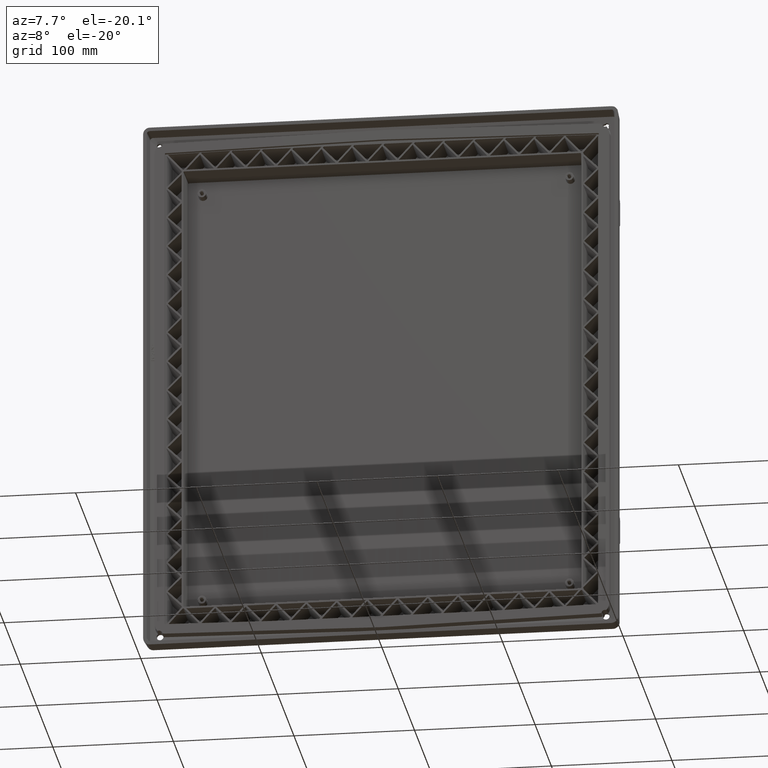
[diagram: clean part render]
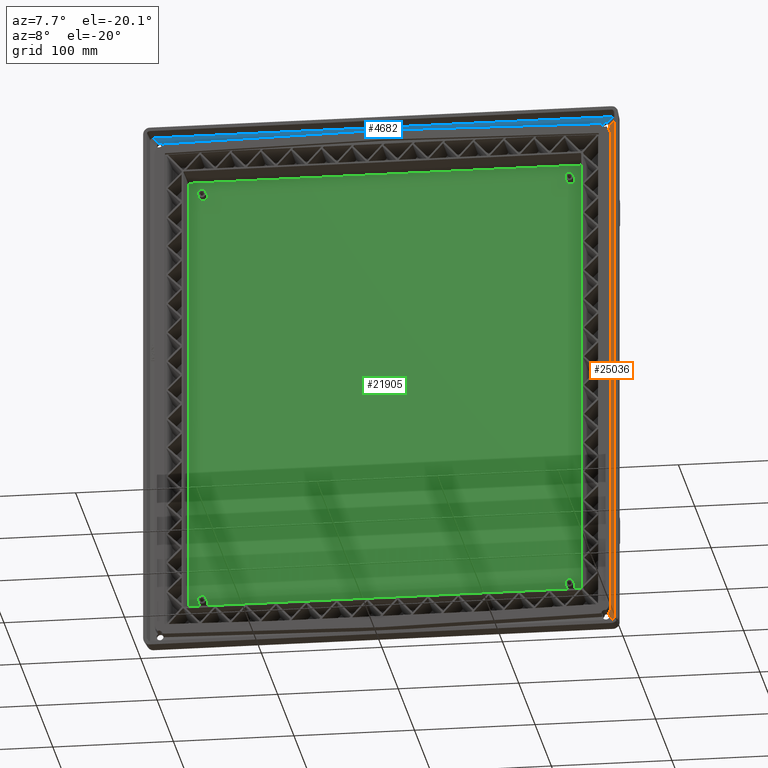
[diagram: same view with three faces highlighted in distinct colors, each labeled with its STEP entity id]
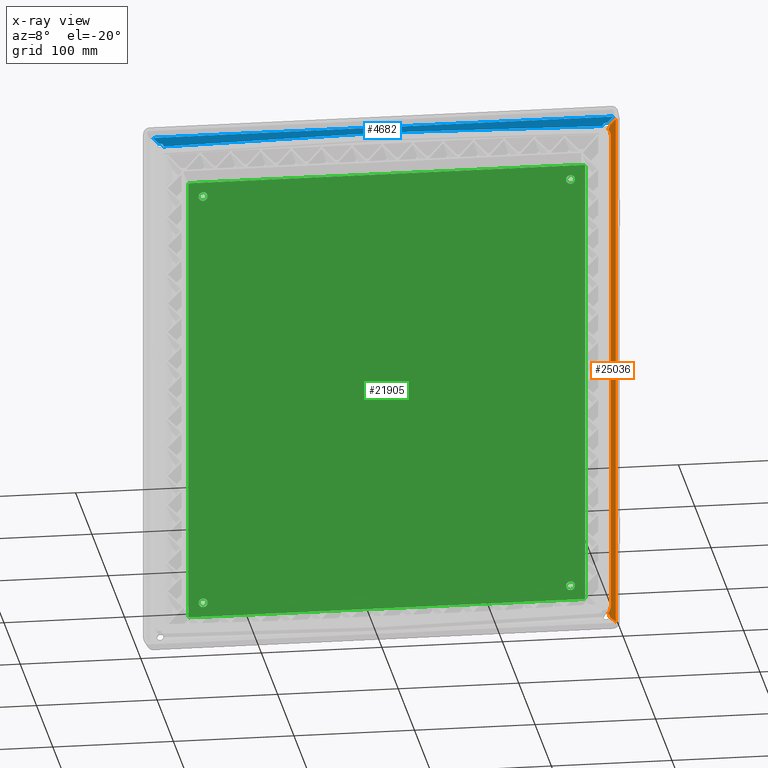
[diagram: x-ray of the same camera — body ghosted, the three highlighted faces saturated]
A machine part, auxiliary view with three faces highlighted in distinct colors.
The next image is the same camera in x-ray (body ghosted, the three faces saturated) — at least one of them is partly hidden behind the body in this view.
Their STEP definitions:

[orange] entity #25036 — the highlighted planar face has unit normal (0.0958, 0.9954, 0).
#612 = CARTESIAN_POINT ( 'NONE',  ( 188.1002924245300400, 7.242149064447600500, -210.3847569201163000 ) ) ;
#1227 = EDGE_CURVE ( 'NONE', #3740, #10674, #14809, .T. ) ;
#1235 = LINE ( 'NONE', #21724, #8979 ) ;
#2037 = EDGE_CURVE ( 'NONE', #10721, #3740, #12906, .T. ) ;
#2242 = CARTESIAN_POINT ( 'NONE',  ( 188.2436100927606900, 7.228349142583774700, 213.7811154145087200 ) ) ;
#2590 = CARTESIAN_POINT ( 'NONE',  ( 193.1263497831059500, 6.758194785204097800, 220.1718974751405800 ) ) ;
#2974 = VERTEX_POINT ( 'NONE', #3605 ) ;
#3605 = CARTESIAN_POINT ( 'NONE',  ( 186.6696170780997500, 7.379907431835039900, 211.8971849966436900 ) ) ;
#3740 = VERTEX_POINT ( 'NONE', #10793 ) ;
#4045 = ORIENTED_EDGE ( 'NONE', *, *, #9882, .F. ) ;
#4725 = LINE ( 'NONE', #14513, #26218 ) ;
#4777 = DIRECTION ( 'NONE',  ( -0.9953961983671790700, 0.09584575252022102500, 0.0000000000000000000 ) ) ;
#5030 = CARTESIAN_POINT ( 'NONE',  ( 188.1508553416446700, 7.237280409284530000, 210.2535449479692900 ) ) ;
#5122 = CARTESIAN_POINT ( 'NONE',  ( 188.9447656382476500, 7.160835542470406900, 208.1853516905118200 ) ) ;
#5394 = EDGE_CURVE ( 'NONE', #2974, #8751, #21432, .T. ) ;
#5851 = VECTOR ( 'NONE', #15574, 1000.000000000000100 ) ;
#6087 = CARTESIAN_POINT ( 'NONE',  ( 193.1417788409318600, 6.756709135911457900, -219.9877121914686600 ) ) ;
#6093 = ORIENTED_EDGE ( 'NONE', *, *, #17016, .F. ) ;
#6145 = CARTESIAN_POINT ( 'NONE',  ( 193.1417788409318600, 6.756709135911458800, -219.8952050040451500 ) ) ;
#6157 = VECTOR ( 'NONE', #11656, 1000.000000000000000 ) ;
#6197 = CARTESIAN_POINT ( 'NONE',  ( 193.1263497831059200, 6.758194785204099600, -220.1718974751406100 ) ) ;
#6452 = VERTEX_POINT ( 'NONE', #6145 ) ;
#6790 = CARTESIAN_POINT ( 'NONE',  ( 186.6696170780997500, 7.379907431835039900, 211.8971849966436900 ) ) ;
#7514 = VERTEX_POINT ( 'NONE', #15507 ) ;
#7552 = PLANE ( 'NONE',  #23409 ) ;
#8383 = ORIENTED_EDGE ( 'NONE', *, *, #8417, .T. ) ;
#8417 = EDGE_CURVE ( 'NONE', #11735, #11387, #13839, .T. ) ;
#8455 = CARTESIAN_POINT ( 'NONE',  ( 193.1417788409318600, 6.756709135911458800, -219.8952050040451500 ) ) ;
#8487 = CARTESIAN_POINT ( 'NONE',  ( 193.1263497831059200, 6.758194785204099600, -220.1718974751406100 ) ) ;
#8751 = VERTEX_POINT ( 'NONE', #29141 ) ;
#8979 = VECTOR ( 'NONE', #21420, 1000.000000000000100 ) ;
#9311 = CARTESIAN_POINT ( 'NONE',  ( 193.1417788409318600, 6.756709135911458800, 219.8952050040451500 ) ) ;
#9512 = CARTESIAN_POINT ( 'NONE',  ( 193.1366305560152100, 6.757204859365932800, 220.0800374449975700 ) ) ;
#9554 = CARTESIAN_POINT ( 'NONE',  ( 188.9447656382476500, 7.160835542470413100, -204.9999999999998600 ) ) ;
#9834 = CARTESIAN_POINT ( 'NONE',  ( 195.6404620733489700, 6.516113305714871900, 225.2259222071694800 ) ) ;
#9882 = EDGE_CURVE ( 'NONE', #6452, #16861, #29608, .T. ) ;
#9990 = CARTESIAN_POINT ( 'NONE',  ( 188.9447656382476500, 7.160835542470413100, 205.9702598365247200 ) ) ;
#10495 = EDGE_CURVE ( 'NONE', #11387, #7514, #30161, .T. ) ;
#10674 = VERTEX_POINT ( 'NONE', #19723 ) ;
#10721 = VERTEX_POINT ( 'NONE', #26662 ) ;
#10793 = CARTESIAN_POINT ( 'NONE',  ( 193.1263497831059500, 6.758194785204097800, 220.1718974751405800 ) ) ;
#11387 = VERTEX_POINT ( 'NONE', #23296 ) ;
#11656 = DIRECTION ( 'NONE',  ( 0.0000000000000000000, -0.0000000000000000000, -1.000000000000000000 ) ) ;
#11735 = VERTEX_POINT ( 'NONE', #27600 ) ;
#12906 = LINE ( 'NONE', #23034, #5851 ) ;
#13115 = ORIENTED_EDGE ( 'NONE', *, *, #19409, .T. ) ;
#13454 = CARTESIAN_POINT ( 'NONE',  ( 186.6696170780997500, 7.379907431835039900, 211.8971849966436900 ) ) ;
#13600 = ORIENTED_EDGE ( 'NONE', *, *, #2037, .F. ) ;
#13839 =( BOUNDED_CURVE ( )  B_SPLINE_CURVE ( 3, ( #16892, #14586, #612, #28961 ),
 .UNSPECIFIED., .F., .F. ) 
 B_SPLINE_CURVE_WITH_KNOTS ( ( 4, 4 ),
 ( 0.8662705728070698700, 1.626325110241901000 ),
 .UNSPECIFIED. ) 
 CURVE ( )  GEOMETRIC_REPRESENTATION_ITEM ( )  RATIONAL_B_SPLINE_CURVE ( ( 1.000000000000000000, 0.9524363471371852800, 0.9524363471371852800, 1.000000000000000000 ) ) 
 REPRESENTATION_ITEM ( '' )  );
#14416 = DIRECTION ( 'NONE',  ( 0.09584575252022102500, 0.9953961983671790700, 0.0000000000000000000 ) ) ;
#14446 = CARTESIAN_POINT ( 'NONE',  ( 187.8215934870834200, 7.268984719867989800, -214.8671411791181100 ) ) ;
#14513 = CARTESIAN_POINT ( 'NONE',  ( 193.1417788409318600, 6.756709135911459700, 225.2259222071694800 ) ) ;
#14586 = CARTESIAN_POINT ( 'NONE',  ( 188.9447656382476200, 7.160835542470414000, -208.2581728943349600 ) ) ;
#14642 = CARTESIAN_POINT ( 'NONE',  ( 187.5095725378649000, 7.299028920085938800, -212.6677806869886600 ) ) ;
#14809 =( BOUNDED_CURVE ( )  B_SPLINE_CURVE ( 3, ( #2590, #9512, #26025, #9311 ),
 .UNSPECIFIED., .F., .F. ) 
 B_SPLINE_CURVE_WITH_KNOTS ( ( 4, 4 ),
 ( 0.2256157631637721900, 0.3364159552918568600 ),
 .UNSPECIFIED. ) 
 CURVE ( )  GEOMETRIC_REPRESENTATION_ITEM ( )  RATIONAL_B_SPLINE_CURVE ( ( 1.000000000000000000, 0.9989772047532758900, 0.9989772047532758900, 1.000000000000000000 ) ) 
 REPRESENTATION_ITEM ( '' )  );
#15507 = CARTESIAN_POINT ( 'NONE',  ( 187.8215934870834200, 7.268984719867989800, -214.8671411791181100 ) ) ;
#15574 = DIRECTION ( 'NONE',  ( 0.7054734583899195900, -0.06792936783698909400, 0.7054734583899194800 ) ) ;
#15829 =( BOUNDED_CURVE ( )  B_SPLINE_CURVE ( 3, ( #6790, #30388, #2242, #16455 ),
 .UNSPECIFIED., .F., .F. ) 
 B_SPLINE_CURVE_WITH_KNOTS ( ( 4, 4 ),
 ( 5.290184633191658200, 6.478166271085797200 ),
 .UNSPECIFIED. ) 
 CURVE ( )  GEOMETRIC_REPRESENTATION_ITEM ( )  RATIONAL_B_SPLINE_CURVE ( ( 1.000000000000000000, 0.8858091545641499900, 0.8858091545641499900, 1.000000000000000000 ) ) 
 REPRESENTATION_ITEM ( '' )  );
#16001 = EDGE_LOOP ( 'NONE', ( #19807, #6093, #4045, #13115, #28001, #13600, #23246, #22704, #24408, #8383 ) ) ;
#16455 = CARTESIAN_POINT ( 'NONE',  ( 187.9949034868072900, 7.252296864951462800, 215.0404511788419200 ) ) ;
#16718 = FACE_OUTER_BOUND ( 'NONE', #16001, .T. ) ;
#16861 = VERTEX_POINT ( 'NONE', #8487 ) ;
#16892 = CARTESIAN_POINT ( 'NONE',  ( 188.9447656382476500, 7.160835542470413100, -205.9702598365247800 ) ) ;
#17016 = EDGE_CURVE ( 'NONE', #16861, #7514, #1235, .T. ) ;
#18968 = DIRECTION ( 'NONE',  ( 0.0000000000000000000, -0.0000000000000000000, 1.000000000000000000 ) ) ;
#19409 = EDGE_CURVE ( 'NONE', #6452, #10674, #4725, .T. ) ;
#19723 = CARTESIAN_POINT ( 'NONE',  ( 193.1417788409318600, 6.756709135911458800, 219.8952050040451500 ) ) ;
#19807 = ORIENTED_EDGE ( 'NONE', *, *, #10495, .T. ) ;
#20354 = EDGE_CURVE ( 'NONE', #2974, #10721, #15829, .T. ) ;
#21392 = EDGE_CURVE ( 'NONE', #8751, #11735, #28378, .T. ) ;
#21420 = DIRECTION ( 'NONE',  ( -0.7054734583899195900, 0.06792936783698909400, 0.7054734583899194800 ) ) ;
#21432 =( BOUNDED_CURVE ( )  B_SPLINE_CURVE ( 3, ( #13454, #5030, #5122, #9990 ),
 .UNSPECIFIED., .F., .F. ) 
 B_SPLINE_CURVE_WITH_KNOTS ( ( 4, 4 ),
 ( 4.679950051249669200, 5.416914734372513300 ),
 .UNSPECIFIED. ) 
 CURVE ( )  GEOMETRIC_REPRESENTATION_ITEM ( )  RATIONAL_B_SPLINE_CURVE ( ( 1.000000000000000000, 0.9552500535990758900, 0.9552500535990758900, 1.000000000000000000 ) ) 
 REPRESENTATION_ITEM ( '' )  );
#21724 = CARTESIAN_POINT ( 'NONE',  ( 196.9045582095074600, 6.394394691933986700, -223.9501059015421200 ) ) ;
#22704 = ORIENTED_EDGE ( 'NONE', *, *, #5394, .T. ) ;
#23034 = CARTESIAN_POINT ( 'NONE',  ( 196.9045582095074800, 6.394394691933983100, 223.9501059015420900 ) ) ;
#23246 = ORIENTED_EDGE ( 'NONE', *, *, #20354, .F. ) ;
#23296 = CARTESIAN_POINT ( 'NONE',  ( 186.5318446894623000, 7.393173404004844700, -212.0465676007110900 ) ) ;
#23409 = AXIS2_PLACEMENT_3D ( 'NONE', #9834, #14416, #4777 ) ;
#23797 = CARTESIAN_POINT ( 'NONE',  ( 186.5318446894623000, 7.393173404004844700, -212.0465676007110900 ) ) ;
#24408 = ORIENTED_EDGE ( 'NONE', *, *, #21392, .T. ) ;
#25036 = ADVANCED_FACE ( 'NONE', ( #16718 ), #7552, .F. ) ;
#26025 = CARTESIAN_POINT ( 'NONE',  ( 193.1417788409318900, 6.756709135911458800, 219.9877121914686900 ) ) ;
#26218 = VECTOR ( 'NONE', #18968, 1000.000000000000000 ) ;
#26662 = CARTESIAN_POINT ( 'NONE',  ( 187.9949034868072900, 7.252296864951462800, 215.0404511788419200 ) ) ;
#27235 = CARTESIAN_POINT ( 'NONE',  ( 193.1366305560152100, 6.757204859365932000, -220.0800374449976300 ) ) ;
#27600 = CARTESIAN_POINT ( 'NONE',  ( 188.9447656382476500, 7.160835542470413100, -205.9702598365247800 ) ) ;
#28001 = ORIENTED_EDGE ( 'NONE', *, *, #1227, .F. ) ;
#28378 = LINE ( 'NONE', #9554, #6157 ) ;
#28918 = CARTESIAN_POINT ( 'NONE',  ( 187.9912885230910400, 7.252644946366972400, -213.7212535669256700 ) ) ;
#28961 = CARTESIAN_POINT ( 'NONE',  ( 186.5318446894623000, 7.393173404004844700, -212.0465676007110900 ) ) ;
#29141 = CARTESIAN_POINT ( 'NONE',  ( 188.9447656382476500, 7.160835542470413100, 205.9702598365247200 ) ) ;
#29608 =( BOUNDED_CURVE ( )  B_SPLINE_CURVE ( 3, ( #8455, #6087, #27235, #6197 ),
 .UNSPECIFIED., .F., .F. ) 
 B_SPLINE_CURVE_WITH_KNOTS ( ( 4, 4 ),
 ( 5.946769351887729400, 6.057569544015826100 ),
 .UNSPECIFIED. ) 
 CURVE ( )  GEOMETRIC_REPRESENTATION_ITEM ( )  RATIONAL_B_SPLINE_CURVE ( ( 1.000000000000000000, 0.9989772047532756700, 0.9989772047532756700, 1.000000000000000000 ) ) 
 REPRESENTATION_ITEM ( '' )  );
#30161 =( BOUNDED_CURVE ( )  B_SPLINE_CURVE ( 3, ( #23797, #14642, #28918, #14446 ),
 .UNSPECIFIED., .F., .F. ) 
 B_SPLINE_CURVE_WITH_KNOTS ( ( 4, 4 ),
 ( 5.278407016167697900, 6.430207018806625800 ),
 .UNSPECIFIED. ) 
 CURVE ( )  GEOMETRIC_REPRESENTATION_ITEM ( )  RATIONAL_B_SPLINE_CURVE ( ( 1.000000000000000000, 0.8924683403891258100, 0.8924683403891258100, 1.000000000000000000 ) ) 
 REPRESENTATION_ITEM ( '' )  );
#30388 = CARTESIAN_POINT ( 'NONE',  ( 187.7448998074135300, 7.276369481286177900, 212.5982924682030600 ) ) ;

[blue] entity #4682 — the highlighted planar face has unit normal (0, 0.9954, 0.0958).
#202 = ORIENTED_EDGE ( 'NONE', *, *, #7897, .F. ) ;
#443 = EDGE_CURVE ( 'NONE', #27536, #16253, #25247, .T. ) ;
#486 = CARTESIAN_POINT ( 'NONE',  ( 0.1585765575110430200, 7.188939717578445100, 217.9028926201407000 ) ) ;
#609 = CARTESIAN_POINT ( 'NONE',  ( -180.3274595042763100, 7.490234595854691900, 214.7738256710299000 ) ) ;
#675 = CARTESIAN_POINT ( 'NONE',  ( -185.6146302994538600, 7.231938922510346800, 217.4563288027926800 ) ) ;
#937 =( BOUNDED_CURVE ( )  B_SPLINE_CURVE ( 3, ( #990, #12471, #675, #24417 ),
 .UNSPECIFIED., .F., .F. ) 
 B_SPLINE_CURVE_WITH_KNOTS ( ( 4, 4 ),
 ( 0.0000000000000000000, 0.3030669380768593600 ),
 .UNSPECIFIED. ) 
 CURVE ( )  GEOMETRIC_REPRESENTATION_ITEM ( )  RATIONAL_B_SPLINE_CURVE ( ( 1.000000000000000000, 0.9923605044771237600, 0.9923605044771237600, 1.000000000000000000 ) ) 
 REPRESENTATION_ITEM ( '' )  );
#990 = CARTESIAN_POINT ( 'NONE',  ( -185.0000000000000000, 7.227446276560629100, 217.5029867149209500 ) ) ;
#1059 = LINE ( 'NONE', #486, #11422 ) ;
#1569 = CARTESIAN_POINT ( 'NONE',  ( 180.3274595042763100, 7.490234595854692800, 214.7738256710298700 ) ) ;
#1744 = VERTEX_POINT ( 'NONE', #12052 ) ;
#2367 = CARTESIAN_POINT ( 'NONE',  ( 185.0000000000000000, 7.227446276560629100, 217.5029867149209500 ) ) ;
#2644 = CARTESIAN_POINT ( 'NONE',  ( 185.9096299993036000, 7.240821249763921100, 217.3640823072684600 ) ) ;
#2665 = CARTESIAN_POINT ( 'NONE',  ( 190.7377121914688600, 6.756709135911457100, 222.3917788409315500 ) ) ;
#2983 = CARTESIAN_POINT ( 'NONE',  ( 185.3090860961124800, 7.227446276560629100, 217.5029867149210100 ) ) ;
#3119 =( BOUNDED_CURVE ( )  B_SPLINE_CURVE ( 3, ( #2367, #26095, #21307, #19036 ),
 .UNSPECIFIED., .F., .F. ) 
 B_SPLINE_CURVE_WITH_KNOTS ( ( 4, 4 ),
 ( 0.0000000000000000000, 1.525160855539051700 ),
 .UNSPECIFIED. ) 
 CURVE ( )  GEOMETRIC_REPRESENTATION_ITEM ( )  RATIONAL_B_SPLINE_CURVE ( ( 1.000000000000000000, 0.8153705916585779500, 0.8153705916585779500, 1.000000000000000000 ) ) 
 REPRESENTATION_ITEM ( '' )  );
#3303 = ORIENTED_EDGE ( 'NONE', *, *, #17120, .T. ) ;
#4058 = DIRECTION ( 'NONE',  ( -0.7054734583899195900, 0.06792936783698909400, -0.7054734583899194800 ) ) ;
#4682 = ADVANCED_FACE ( 'NONE', ( #9653 ), #10253, .F. ) ;
#5501 = EDGE_CURVE ( 'NONE', #23325, #21764, #29206, .T. ) ;
#5688 =( BOUNDED_CURVE ( )  B_SPLINE_CURVE ( 3, ( #30027, #25806, #9395, #21222 ),
 .UNSPECIFIED., .F., .F. ) 
 B_SPLINE_CURVE_WITH_KNOTS ( ( 4, 4 ),
 ( 0.2256157631637929200, 0.3364159552918676900 ),
 .UNSPECIFIED. ) 
 CURVE ( )  GEOMETRIC_REPRESENTATION_ITEM ( )  RATIONAL_B_SPLINE_CURVE ( ( 1.000000000000000000, 0.9989772047532761200, 0.9989772047532761200, 1.000000000000000000 ) ) 
 REPRESENTATION_ITEM ( '' )  );
#5798 = DIRECTION ( 'NONE',  ( 0.0000000000000000000, -0.09584575252022103900, 0.9953961983671790700 ) ) ;
#6423 = LINE ( 'NONE', #27586, #24253 ) ;
#6434 = VERTEX_POINT ( 'NONE', #25129 ) ;
#7120 = AXIS2_PLACEMENT_3D ( 'NONE', #12853, #19992, #5798 ) ;
#7269 = CARTESIAN_POINT ( 'NONE',  ( -182.0338453312157000, 7.341949493186590700, 216.3138253433072000 ) ) ;
#7635 = CARTESIAN_POINT ( 'NONE',  ( -190.9218974751408100, 6.758194785204097800, 222.3763497831056400 ) ) ;
#7897 = EDGE_CURVE ( 'NONE', #10551, #6434, #937, .T. ) ;
#8416 = ORIENTED_EDGE ( 'NONE', *, *, #26173, .T. ) ;
#9395 = CARTESIAN_POINT ( 'NONE',  ( -190.7377121914689400, 6.756709135911462400, 222.3917788409315800 ) ) ;
#9653 = FACE_OUTER_BOUND ( 'NONE', #29477, .T. ) ;
#10253 = PLANE ( 'NONE',  #7120 ) ;
#10551 = VERTEX_POINT ( 'NONE', #26453 ) ;
#10581 = ORIENTED_EDGE ( 'NONE', *, *, #30450, .T. ) ;
#10782 = DIRECTION ( 'NONE',  ( -1.000000000000000000, -0.0000000000000000000, -0.0000000000000000000 ) ) ;
#11040 =( BOUNDED_CURVE ( )  B_SPLINE_CURVE ( 3, ( #1569, #15543, #25091, #15859 ),
 .UNSPECIFIED., .F., .F. ) 
 B_SPLINE_CURVE_WITH_KNOTS ( ( 4, 4 ),
 ( 0.8822001264295934500, 1.068284501790514900 ),
 .UNSPECIFIED. ) 
 CURVE ( )  GEOMETRIC_REPRESENTATION_ITEM ( )  RATIONAL_B_SPLINE_CURVE ( ( 1.000000000000000000, 0.9971164648651960100, 0.9971164648651960100, 1.000000000000000000 ) ) 
 REPRESENTATION_ITEM ( '' )  );
#11060 = ORIENTED_EDGE ( 'NONE', *, *, #12010, .T. ) ;
#11246 = ORIENTED_EDGE ( 'NONE', *, *, #443, .T. ) ;
#11422 = VECTOR ( 'NONE', #21502, 999.9999999999998900 ) ;
#12010 = EDGE_CURVE ( 'NONE', #16294, #16855, #29273, .T. ) ;
#12052 = CARTESIAN_POINT ( 'NONE',  ( 190.9218974751407800, 6.758194785204096900, 222.3763497831056700 ) ) ;
#12227 = CARTESIAN_POINT ( 'NONE',  ( -185.0000000000000000, 7.227446276560629100, 217.5029867149209500 ) ) ;
#12428 = CARTESIAN_POINT ( 'NONE',  ( -183.2785499354238300, 7.227446276560628200, 217.5029867149209800 ) ) ;
#12471 = CARTESIAN_POINT ( 'NONE',  ( -185.3090860961125100, 7.227446276560628200, 217.5029867149209800 ) ) ;
#12474 = CARTESIAN_POINT ( 'NONE',  ( -179.3278304738495600, 7.488562924797416400, 214.7911866387470900 ) ) ;
#12626 = CARTESIAN_POINT ( 'NONE',  ( -181.9553134112798000, 7.507533943021996900, 214.5941650814702700 ) ) ;
#12853 = CARTESIAN_POINT ( 'NONE',  ( -195.9759222071697600, 6.516113305714871900, 224.8904620733487100 ) ) ;
#12960 =( BOUNDED_CURVE ( )  B_SPLINE_CURVE ( 3, ( #12626, #22143, #24359, #609 ),
 .UNSPECIFIED., .F., .T. ) 
 B_SPLINE_CURVE_WITH_KNOTS ( ( 4, 4 ),
 ( 5.214900805389076400, 5.400985180749993100 ),
 .UNSPECIFIED. ) 
 CURVE ( )  GEOMETRIC_REPRESENTATION_ITEM ( )  RATIONAL_B_SPLINE_CURVE ( ( 1.000000000000000000, 0.9971164648651962300, 0.9971164648651962300, 1.000000000000000000 ) ) 
 REPRESENTATION_ITEM ( '' )  );
#13500 = ORIENTED_EDGE ( 'NONE', *, *, #5501, .F. ) ;
#14014 = ORIENTED_EDGE ( 'NONE', *, *, #14641, .F. ) ;
#14478 = CARTESIAN_POINT ( 'NONE',  ( 190.6452050040454400, 6.756709135911458800, 222.3917788409315800 ) ) ;
#14518 = CARTESIAN_POINT ( 'NONE',  ( 181.9553134112798300, 7.507533943022004100, 214.5941650814701200 ) ) ;
#14641 = EDGE_CURVE ( 'NONE', #21764, #29122, #3119, .T. ) ;
#14690 = CARTESIAN_POINT ( 'NONE',  ( 185.0000000000000000, 7.227446276560629100, 217.5029867149209500 ) ) ;
#15543 = CARTESIAN_POINT ( 'NONE',  ( 180.8747831141301400, 7.491149880434978300, 214.7643200772222400 ) ) ;
#15723 = CARTESIAN_POINT ( 'NONE',  ( -5.502326025363935000E-015, 7.188674531360872400, 217.9056466843103700 ) ) ;
#15859 = CARTESIAN_POINT ( 'NONE',  ( 181.9553134112798300, 7.507533943022004100, 214.5941650814701200 ) ) ;
#16253 = VERTEX_POINT ( 'NONE', #15723 ) ;
#16294 = VERTEX_POINT ( 'NONE', #18111 ) ;
#16836 = EDGE_CURVE ( 'NONE', #1744, #23325, #6423, .T. ) ;
#16855 = VERTEX_POINT ( 'NONE', #29931 ) ;
#17088 = CARTESIAN_POINT ( 'NONE',  ( -180.3274595042763100, 7.490234595854691900, 214.7738256710299000 ) ) ;
#17120 = EDGE_CURVE ( 'NONE', #21664, #27536, #12960, .T. ) ;
#17201 = VERTEX_POINT ( 'NONE', #7635 ) ;
#18111 = CARTESIAN_POINT ( 'NONE',  ( 190.6452050040454400, 6.756709135911458800, 222.3917788409315800 ) ) ;
#18905 = VECTOR ( 'NONE', #21891, 999.9999999999998900 ) ;
#19036 = CARTESIAN_POINT ( 'NONE',  ( 181.9553134112798300, 7.507533943022004100, 214.5941650814701200 ) ) ;
#19069 = CARTESIAN_POINT ( 'NONE',  ( -181.9553134112798000, 7.507533943021996900, 214.5941650814702700 ) ) ;
#19244 = CARTESIAN_POINT ( 'NONE',  ( 190.8300374449978000, 6.757204859365931100, 222.3866305560149200 ) ) ;
#19375 = CARTESIAN_POINT ( 'NONE',  ( 185.9096299993036000, 7.240821249763921100, 217.3640823072684600 ) ) ;
#19643 = CARTESIAN_POINT ( 'NONE',  ( 185.6146302994538600, 7.231938922510347600, 217.4563288027926800 ) ) ;
#19992 = DIRECTION ( 'NONE',  ( 0.0000000000000000000, 0.9953961983671790700, 0.09584575252022103900 ) ) ;
#20374 = ORIENTED_EDGE ( 'NONE', *, *, #27497, .F. ) ;
#20519 = ORIENTED_EDGE ( 'NONE', *, *, #29787, .F. ) ;
#20767 = VECTOR ( 'NONE', #10782, 1000.000000000000000 ) ;
#21039 = DIRECTION ( 'NONE',  ( -0.7054734583899195900, -0.06792936783698909400, 0.7054734583899194800 ) ) ;
#21088 = VECTOR ( 'NONE', #21039, 1000.000000000000100 ) ;
#21222 = CARTESIAN_POINT ( 'NONE',  ( -190.6452050040454400, 6.756709135911460600, 222.3917788409315500 ) ) ;
#21307 = CARTESIAN_POINT ( 'NONE',  ( 182.0338453312156200, 7.341949493186599600, 216.3138253433071700 ) ) ;
#21502 = DIRECTION ( 'NONE',  ( 0.9998478229908014400, 0.001672036942204917000, -0.01736476757745861500 ) ) ;
#21664 = VERTEX_POINT ( 'NONE', #26015 ) ;
#21764 = VERTEX_POINT ( 'NONE', #14690 ) ;
#21891 = DIRECTION ( 'NONE',  ( 0.9998478229908014400, -0.001672036942204917000, 0.01736476757745861500 ) ) ;
#22143 = CARTESIAN_POINT ( 'NONE',  ( -181.4189702659032800, 7.496933005334586400, 214.7042600287758500 ) ) ;
#23117 = CARTESIAN_POINT ( 'NONE',  ( 180.3274595042763100, 7.490234595854692800, 214.7738256710298700 ) ) ;
#23325 = VERTEX_POINT ( 'NONE', #2644 ) ;
#23343 = LINE ( 'NONE', #25133, #21088 ) ;
#24129 = CARTESIAN_POINT ( 'NONE',  ( 190.9218974751407800, 6.758194785204096900, 222.3763497831056700 ) ) ;
#24253 = VECTOR ( 'NONE', #4058, 1000.000000000000100 ) ;
#24359 = CARTESIAN_POINT ( 'NONE',  ( -180.8747831141300800, 7.491149880434978300, 214.7643200772222900 ) ) ;
#24417 = CARTESIAN_POINT ( 'NONE',  ( -185.9096299993036600, 7.240821249763925500, 217.3640823072684600 ) ) ;
#25091 = CARTESIAN_POINT ( 'NONE',  ( 181.4189702659033400, 7.496933005334586400, 214.7042600287757600 ) ) ;
#25129 = CARTESIAN_POINT ( 'NONE',  ( -185.9096299993036600, 7.240821249763925500, 217.3640823072684600 ) ) ;
#25133 = CARTESIAN_POINT ( 'NONE',  ( -194.7001059015423700, 6.394394691933983100, 226.1545582095072000 ) ) ;
#25247 = LINE ( 'NONE', #12474, #18905 ) ;
#25806 = CARTESIAN_POINT ( 'NONE',  ( -190.8300374449978300, 6.757204859365937300, 222.3866305560149500 ) ) ;
#26015 = CARTESIAN_POINT ( 'NONE',  ( -181.9553134112798000, 7.507533943021996900, 214.5941650814702700 ) ) ;
#26057 = EDGE_CURVE ( 'NONE', #21664, #10551, #26231, .T. ) ;
#26095 = CARTESIAN_POINT ( 'NONE',  ( 183.2785499354237700, 7.227446276560627300, 217.5029867149209800 ) ) ;
#26173 = EDGE_CURVE ( 'NONE', #27373, #29122, #11040, .T. ) ;
#26231 =( BOUNDED_CURVE ( )  B_SPLINE_CURVE ( 3, ( #19069, #7269, #12428, #12227 ),
 .UNSPECIFIED., .F., .F. ) 
 B_SPLINE_CURVE_WITH_KNOTS ( ( 4, 4 ),
 ( 4.758024451640588700, 6.283185307179586200 ),
 .UNSPECIFIED. ) 
 CURVE ( )  GEOMETRIC_REPRESENTATION_ITEM ( )  RATIONAL_B_SPLINE_CURVE ( ( 1.000000000000000000, 0.8153705916585904900, 0.8153705916585904900, 1.000000000000000000 ) ) 
 REPRESENTATION_ITEM ( '' )  );
#26423 = ORIENTED_EDGE ( 'NONE', *, *, #26057, .F. ) ;
#26453 = CARTESIAN_POINT ( 'NONE',  ( -185.0000000000000000, 7.227446276560629100, 217.5029867149209500 ) ) ;
#27258 = CARTESIAN_POINT ( 'NONE',  ( -195.9759222071697600, 6.756709135911459700, 222.3917788409315800 ) ) ;
#27373 = VERTEX_POINT ( 'NONE', #23117 ) ;
#27497 = EDGE_CURVE ( 'NONE', #17201, #16855, #5688, .T. ) ;
#27536 = VERTEX_POINT ( 'NONE', #17088 ) ;
#27547 = ORIENTED_EDGE ( 'NONE', *, *, #16836, .F. ) ;
#27586 = CARTESIAN_POINT ( 'NONE',  ( 194.7001059015423400, 6.394394691933980500, 226.1545582095072300 ) ) ;
#27885 =( BOUNDED_CURVE ( )  B_SPLINE_CURVE ( 3, ( #14478, #2665, #19244, #24129 ),
 .UNSPECIFIED., .F., .F. ) 
 B_SPLINE_CURVE_WITH_KNOTS ( ( 4, 4 ),
 ( 5.946769351887729400, 6.057569544015792400 ),
 .UNSPECIFIED. ) 
 CURVE ( )  GEOMETRIC_REPRESENTATION_ITEM ( )  RATIONAL_B_SPLINE_CURVE ( ( 1.000000000000000000, 0.9989772047532762300, 0.9989772047532762300, 1.000000000000000000 ) ) 
 REPRESENTATION_ITEM ( '' )  );
#28165 = CARTESIAN_POINT ( 'NONE',  ( 185.0000000000000000, 7.227446276560629100, 217.5029867149209500 ) ) ;
#28308 = ORIENTED_EDGE ( 'NONE', *, *, #30442, .F. ) ;
#29122 = VERTEX_POINT ( 'NONE', #14518 ) ;
#29206 =( BOUNDED_CURVE ( )  B_SPLINE_CURVE ( 3, ( #19375, #19643, #2983, #28165 ),
 .UNSPECIFIED., .F., .F. ) 
 B_SPLINE_CURVE_WITH_KNOTS ( ( 4, 4 ),
 ( 5.980118369102746600, 6.283185307179586200 ),
 .UNSPECIFIED. ) 
 CURVE ( )  GEOMETRIC_REPRESENTATION_ITEM ( )  RATIONAL_B_SPLINE_CURVE ( ( 1.000000000000000000, 0.9923605044771247600, 0.9923605044771247600, 1.000000000000000000 ) ) 
 REPRESENTATION_ITEM ( '' )  );
#29273 = LINE ( 'NONE', #27258, #20767 ) ;
#29477 = EDGE_LOOP ( 'NONE', ( #10581, #8416, #14014, #13500, #27547, #28308, #11060, #20374, #20519, #202, #26423, #3303, #11246 ) ) ;
#29787 = EDGE_CURVE ( 'NONE', #6434, #17201, #23343, .T. ) ;
#29931 = CARTESIAN_POINT ( 'NONE',  ( -190.6452050040454400, 6.756709135911460600, 222.3917788409315500 ) ) ;
#30027 = CARTESIAN_POINT ( 'NONE',  ( -190.9218974751408100, 6.758194785204097800, 222.3763497831056400 ) ) ;
#30442 = EDGE_CURVE ( 'NONE', #16294, #1744, #27885, .T. ) ;
#30450 = EDGE_CURVE ( 'NONE', #16253, #27373, #1059, .T. ) ;

[green] entity #21905 — the highlighted planar face has unit normal (0, 1, 0).
#48 = EDGE_CURVE ( 'NONE', #8682, #9566, #16755, .T. ) ;
#72 = AXIS2_PLACEMENT_3D ( 'NONE', #24988, #10779, #27367 ) ;
#102 = EDGE_LOOP ( 'NONE', ( #15575, #9641 ) ) ;
#193 = FACE_BOUND ( 'NONE', #102, .T. ) ;
#287 = EDGE_LOOP ( 'NONE', ( #13778, #25251 ) ) ;
#308 = DIRECTION ( 'NONE',  ( -0.0000000000000000000, -1.000000000000000000, -0.0000000000000000000 ) ) ;
#715 = AXIS2_PLACEMENT_3D ( 'NONE', #13694, #27883, #13794 ) ;
#1119 = EDGE_CURVE ( 'NONE', #10150, #3210, #9977, .T. ) ;
#1327 = EDGE_LOOP ( 'NONE', ( #1509, #2656, #18150, #10092, #23214, #26746, #4700, #2275 ) ) ;
#1509 = ORIENTED_EDGE ( 'NONE', *, *, #48, .T. ) ;
#1863 = EDGE_CURVE ( 'NONE', #22881, #9599, #15535, .T. ) ;
#2275 = ORIENTED_EDGE ( 'NONE', *, *, #17339, .T. ) ;
#2359 = CARTESIAN_POINT ( 'NONE',  ( -164.5317312209668600, 30.40000000000000200, 189.0218835258104400 ) ) ;
#2381 = DIRECTION ( 'NONE',  ( 0.0000000000000000000, 0.0000000000000000000, 1.000000000000000000 ) ) ;
#2436 = CARTESIAN_POINT ( 'NONE',  ( -152.3999999999998900, 30.40000000000000200, -174.0500000000000400 ) ) ;
#2656 = ORIENTED_EDGE ( 'NONE', *, *, #8019, .T. ) ;
#3050 = DIRECTION ( 'NONE',  ( -1.000000000000000000, -0.0000000000000000000, -0.0000000000000000000 ) ) ;
#3210 = VERTEX_POINT ( 'NONE', #18429 ) ;
#4054 = AXIS2_PLACEMENT_3D ( 'NONE', #24055, #308, #7546 ) ;
#4700 = ORIENTED_EDGE ( 'NONE', *, *, #1863, .T. ) ;
#4718 = CARTESIAN_POINT ( 'NONE',  ( 163.5318835258104300, 30.40000000000000200, -190.0217312209668100 ) ) ;
#4733 = CARTESIAN_POINT ( 'NONE',  ( 152.3999999999999500, 30.40000000000000200, 174.0500000000000100 ) ) ;
#4762 = CARTESIAN_POINT ( 'NONE',  ( -163.5318835258104600, 30.40000000000000200, 190.0217312209668100 ) ) ;
#4780 = CIRCLE ( 'NONE', #4054, 3.750000000000003600 ) ;
#4896 = CARTESIAN_POINT ( 'NONE',  ( -152.3999999999998900, 30.40000000000000200, -177.8000000000000400 ) ) ;
#5354 = FACE_OUTER_BOUND ( 'NONE', #1327, .T. ) ;
#5833 = VERTEX_POINT ( 'NONE', #16609 ) ;
#7237 = EDGE_CURVE ( 'NONE', #23958, #14862, #25545, .T. ) ;
#7546 = DIRECTION ( 'NONE',  ( 0.0000000000000000000, 0.0000000000000000000, 1.000000000000000000 ) ) ;
#7784 = CARTESIAN_POINT ( 'NONE',  ( -165.0100000000000500, 30.40000000000000200, 190.0217312209668100 ) ) ;
#7843 = VERTEX_POINT ( 'NONE', #2436 ) ;
#7872 = CARTESIAN_POINT ( 'NONE',  ( 164.5317312209668600, 30.40000000000000200, -189.0218835258104700 ) ) ;
#8019 = EDGE_CURVE ( 'NONE', #9566, #23958, #23925, .T. ) ;
#8190 = VECTOR ( 'NONE', #10107, 1000.000000000000000 ) ;
#8483 = EDGE_CURVE ( 'NONE', #24737, #7843, #23228, .T. ) ;
#8668 = CARTESIAN_POINT ( 'NONE',  ( -152.3999999999998900, 30.40000000000000200, -177.8000000000000400 ) ) ;
#8681 = AXIS2_PLACEMENT_3D ( 'NONE', #26249, #9445, #16734 ) ;
#8682 = VERTEX_POINT ( 'NONE', #2359 ) ;
#9109 =( BOUNDED_CURVE ( )  B_SPLINE_CURVE ( 3, ( #4718, #26266, #12170, #23802 ),
 .UNSPECIFIED., .F., .F. ) 
 B_SPLINE_CURVE_WITH_KNOTS ( ( 4, 4 ),
 ( 2.356346783439880400, 3.926838523739677900 ),
 .UNSPECIFIED. ) 
 CURVE ( )  GEOMETRIC_REPRESENTATION_ITEM ( )  RATIONAL_B_SPLINE_CURVE ( ( 1.000000000000000000, 0.8048096403827707000, 0.8048096403827707000, 1.000000000000000000 ) ) 
 REPRESENTATION_ITEM ( '' )  );
#9346 = DIRECTION ( 'NONE',  ( -0.0000000000000000000, -1.000000000000000000, -0.0000000000000000000 ) ) ;
#9445 = DIRECTION ( 'NONE',  ( -0.0000000000000000000, -1.000000000000000000, -0.0000000000000000000 ) ) ;
#9566 = VERTEX_POINT ( 'NONE', #21128 ) ;
#9599 = VERTEX_POINT ( 'NONE', #4762 ) ;
#9641 = ORIENTED_EDGE ( 'NONE', *, *, #29301, .F. ) ;
#9738 = CARTESIAN_POINT ( 'NONE',  ( -164.5317312209668600, 30.40000000000000200, -189.0218835258104100 ) ) ;
#9749 = DIRECTION ( 'NONE',  ( -0.0000000000000000000, -1.000000000000000000, -0.0000000000000000000 ) ) ;
#9847 = CARTESIAN_POINT ( 'NONE',  ( -164.5317312209668900, 30.39999999999999900, -189.6076176861269300 ) ) ;
#9949 = CARTESIAN_POINT ( 'NONE',  ( -163.5318835258104600, 30.40000000000000200, -190.0217312209668100 ) ) ;
#9977 = CIRCLE ( 'NONE', #715, 3.750000000000003600 ) ;
#10092 = ORIENTED_EDGE ( 'NONE', *, *, #23272, .T. ) ;
#10107 = DIRECTION ( 'NONE',  ( 0.0000000000000000000, -0.0000000000000000000, -1.000000000000000000 ) ) ;
#10150 = VERTEX_POINT ( 'NONE', #17902 ) ;
#10504 = AXIS2_PLACEMENT_3D ( 'NONE', #19203, #9749, #14540 ) ;
#10531 = DIRECTION ( 'NONE',  ( 0.0000000000000000000, -0.0000000000000000000, 1.000000000000000000 ) ) ;
#10779 = DIRECTION ( 'NONE',  ( -0.0000000000000000000, -1.000000000000000000, -0.0000000000000000000 ) ) ;
#10891 = CARTESIAN_POINT ( 'NONE',  ( 152.3999999999999500, 30.40000000000000200, -181.5500000000000100 ) ) ;
#11058 = CARTESIAN_POINT ( 'NONE',  ( 164.1176176861270100, 30.40000000000000200, 190.0217312209668100 ) ) ;
#11160 = CARTESIAN_POINT ( 'NONE',  ( 164.5317312209668600, 30.40000000000000200, 189.0218835258104700 ) ) ;
#11562 = EDGE_CURVE ( 'NONE', #15967, #23457, #24911, .T. ) ;
#11582 = DIRECTION ( 'NONE',  ( 1.000000000000000000, -0.0000000000000000000, -0.0000000000000000000 ) ) ;
#11746 = AXIS2_PLACEMENT_3D ( 'NONE', #8668, #17926, #30007 ) ;
#11893 = CIRCLE ( 'NONE', #8681, 3.750000000000003600 ) ;
#11958 = DIRECTION ( 'NONE',  ( 0.0000000000000000000, 0.0000000000000000000, 1.000000000000000000 ) ) ;
#12170 = CARTESIAN_POINT ( 'NONE',  ( 164.5317312209668300, 30.39999999999999900, -189.6076176861269600 ) ) ;
#12577 = CARTESIAN_POINT ( 'NONE',  ( 164.5317312209668600, 30.40000000000000200, 190.5000000000000000 ) ) ;
#13247 = EDGE_CURVE ( 'NONE', #22476, #23508, #4780, .T. ) ;
#13694 = CARTESIAN_POINT ( 'NONE',  ( -152.4000000000000600, 30.40000000000000200, 177.7999999999999500 ) ) ;
#13778 = ORIENTED_EDGE ( 'NONE', *, *, #8483, .F. ) ;
#13794 = DIRECTION ( 'NONE',  ( 0.0000000000000000000, 0.0000000000000000000, 1.000000000000000000 ) ) ;
#14213 = EDGE_CURVE ( 'NONE', #22390, #5833, #21771, .T. ) ;
#14540 = DIRECTION ( 'NONE',  ( 0.0000000000000000000, 0.0000000000000000000, 1.000000000000000000 ) ) ;
#14638 = FACE_BOUND ( 'NONE', #287, .T. ) ;
#14647 = DIRECTION ( 'NONE',  ( -0.0000000000000000000, -0.0000000000000000000, 1.000000000000000000 ) ) ;
#14852 =( BOUNDED_CURVE ( )  B_SPLINE_CURVE ( 3, ( #17808, #20163, #22350, #27334 ),
 .UNSPECIFIED., .F., .T. ) 
 B_SPLINE_CURVE_WITH_KNOTS ( ( 4, 4 ),
 ( 2.356346783439908300, 3.926838523739677900 ),
 .UNSPECIFIED. ) 
 CURVE ( )  GEOMETRIC_REPRESENTATION_ITEM ( )  RATIONAL_B_SPLINE_CURVE ( ( 1.000000000000000000, 0.8048096403827772500, 0.8048096403827772500, 1.000000000000000000 ) ) 
 REPRESENTATION_ITEM ( '' )  );
#14855 = CARTESIAN_POINT ( 'NONE',  ( 152.3999999999999500, 30.40000000000000200, 181.5500000000000100 ) ) ;
#14862 = VERTEX_POINT ( 'NONE', #29252 ) ;
#15116 = EDGE_CURVE ( 'NONE', #7843, #24737, #30593, .T. ) ;
#15535 = LINE ( 'NONE', #7784, #22181 ) ;
#15575 = ORIENTED_EDGE ( 'NONE', *, *, #1119, .F. ) ;
#15967 = VERTEX_POINT ( 'NONE', #4733 ) ;
#16586 = CARTESIAN_POINT ( 'NONE',  ( 152.3999999999999500, 30.40000000000000200, -177.8000000000000100 ) ) ;
#16609 = CARTESIAN_POINT ( 'NONE',  ( 164.5317312209668600, 30.40000000000000200, 189.0218835258104700 ) ) ;
#16734 = DIRECTION ( 'NONE',  ( 0.0000000000000000000, 0.0000000000000000000, 1.000000000000000000 ) ) ;
#16755 = LINE ( 'NONE', #24760, #8190 ) ;
#17243 = FACE_BOUND ( 'NONE', #19575, .T. ) ;
#17339 = EDGE_CURVE ( 'NONE', #9599, #8682, #14852, .T. ) ;
#17808 = CARTESIAN_POINT ( 'NONE',  ( -163.5318835258104600, 30.40000000000000200, 190.0217312209668100 ) ) ;
#17902 = CARTESIAN_POINT ( 'NONE',  ( -152.4000000000000600, 30.40000000000000200, 174.0499999999999500 ) ) ;
#17926 = DIRECTION ( 'NONE',  ( -0.0000000000000000000, -1.000000000000000000, -0.0000000000000000000 ) ) ;
#18150 = ORIENTED_EDGE ( 'NONE', *, *, #7237, .T. ) ;
#18181 = AXIS2_PLACEMENT_3D ( 'NONE', #4896, #9346, #11958 ) ;
#18429 = CARTESIAN_POINT ( 'NONE',  ( -152.4000000000000600, 30.40000000000000200, 181.5499999999999500 ) ) ;
#19090 = CARTESIAN_POINT ( 'NONE',  ( -164.1176176861270100, 30.39999999999999900, -190.0217312209668100 ) ) ;
#19203 = CARTESIAN_POINT ( 'NONE',  ( 152.3999999999999500, 30.40000000000000200, 177.8000000000000100 ) ) ;
#19575 = EDGE_LOOP ( 'NONE', ( #23213, #26026 ) ) ;
#20163 = CARTESIAN_POINT ( 'NONE',  ( -164.1176176861270600, 30.40000000000000200, 190.0217312209668700 ) ) ;
#20314 = CARTESIAN_POINT ( 'NONE',  ( -152.3999999999998900, 30.40000000000000200, -181.5500000000000400 ) ) ;
#21128 = CARTESIAN_POINT ( 'NONE',  ( -164.5317312209668600, 30.40000000000000200, -189.0218835258104100 ) ) ;
#21263 =( BOUNDED_CURVE ( )  B_SPLINE_CURVE ( 3, ( #11160, #23383, #11058, #29992 ),
 .UNSPECIFIED., .F., .F. ) 
 B_SPLINE_CURVE_WITH_KNOTS ( ( 4, 4 ),
 ( 2.356346783439935900, 3.926838523739650400 ),
 .UNSPECIFIED. ) 
 CURVE ( )  GEOMETRIC_REPRESENTATION_ITEM ( )  RATIONAL_B_SPLINE_CURVE ( ( 1.000000000000000000, 0.8048096403827902400, 0.8048096403827902400, 1.000000000000000000 ) ) 
 REPRESENTATION_ITEM ( '' )  );
#21708 = EDGE_CURVE ( 'NONE', #23508, #22476, #29451, .T. ) ;
#21771 = LINE ( 'NONE', #12577, #23657 ) ;
#21905 = ADVANCED_FACE ( 'NONE', ( #17243, #5354, #14638, #27263, #193 ), #24450, .F. ) ;
#21931 = CARTESIAN_POINT ( 'NONE',  ( 163.5318835258105400, 30.40000000000000200, 190.0217312209668100 ) ) ;
#22146 = DIRECTION ( 'NONE',  ( 0.0000000000000000000, 1.000000000000000000, 0.0000000000000000000 ) ) ;
#22165 = VECTOR ( 'NONE', #11582, 1000.000000000000000 ) ;
#22181 = VECTOR ( 'NONE', #3050, 1000.000000000000000 ) ;
#22350 = CARTESIAN_POINT ( 'NONE',  ( -164.5317312209668600, 30.40000000000000200, 189.6076176861269600 ) ) ;
#22390 = VERTEX_POINT ( 'NONE', #7872 ) ;
#22476 = VERTEX_POINT ( 'NONE', #10891 ) ;
#22881 = VERTEX_POINT ( 'NONE', #21931 ) ;
#23213 = ORIENTED_EDGE ( 'NONE', *, *, #13247, .F. ) ;
#23214 = ORIENTED_EDGE ( 'NONE', *, *, #14213, .T. ) ;
#23228 = CIRCLE ( 'NONE', #11746, 3.750000000000003600 ) ;
#23272 = EDGE_CURVE ( 'NONE', #14862, #22390, #9109, .T. ) ;
#23383 = CARTESIAN_POINT ( 'NONE',  ( 164.5317312209668900, 30.40000000000000200, 189.6076176861269300 ) ) ;
#23400 = CARTESIAN_POINT ( 'NONE',  ( -165.0100000000000500, 30.40000000000000200, -190.0217312209668100 ) ) ;
#23457 = VERTEX_POINT ( 'NONE', #14855 ) ;
#23508 = VERTEX_POINT ( 'NONE', #24420 ) ;
#23523 = DIRECTION ( 'NONE',  ( -0.0000000000000000000, -1.000000000000000000, -0.0000000000000000000 ) ) ;
#23561 = EDGE_LOOP ( 'NONE', ( #29624, #28389 ) ) ;
#23657 = VECTOR ( 'NONE', #14647, 1000.000000000000000 ) ;
#23802 = CARTESIAN_POINT ( 'NONE',  ( 164.5317312209668600, 30.40000000000000200, -189.0218835258104700 ) ) ;
#23925 =( BOUNDED_CURVE ( )  B_SPLINE_CURVE ( 3, ( #9738, #9847, #19090, #9949 ),
 .UNSPECIFIED., .F., .F. ) 
 B_SPLINE_CURVE_WITH_KNOTS ( ( 4, 4 ),
 ( 2.356346783439880400, 3.926838523739677900 ),
 .UNSPECIFIED. ) 
 CURVE ( )  GEOMETRIC_REPRESENTATION_ITEM ( )  RATIONAL_B_SPLINE_CURVE ( ( 1.000000000000000000, 0.8048096403827707000, 0.8048096403827707000, 1.000000000000000000 ) ) 
 REPRESENTATION_ITEM ( '' )  );
#23958 = VERTEX_POINT ( 'NONE', #24289 ) ;
#24055 = CARTESIAN_POINT ( 'NONE',  ( 152.3999999999999500, 30.40000000000000200, -177.8000000000000100 ) ) ;
#24289 = CARTESIAN_POINT ( 'NONE',  ( -163.5318835258104600, 30.40000000000000200, -190.0217312209668100 ) ) ;
#24420 = CARTESIAN_POINT ( 'NONE',  ( 152.3999999999999500, 30.40000000000000200, -174.0500000000000100 ) ) ;
#24450 = PLANE ( 'NONE',  #27217 ) ;
#24502 = EDGE_CURVE ( 'NONE', #23457, #15967, #11893, .T. ) ;
#24737 = VERTEX_POINT ( 'NONE', #20314 ) ;
#24760 = CARTESIAN_POINT ( 'NONE',  ( -164.5317312209668600, 30.40000000000000200, 190.5000000000000000 ) ) ;
#24767 = CARTESIAN_POINT ( 'NONE',  ( -182.5000000000000000, 30.40000000000000200, 210.0000000000000000 ) ) ;
#24911 = CIRCLE ( 'NONE', #10504, 3.750000000000003600 ) ;
#24988 = CARTESIAN_POINT ( 'NONE',  ( -152.4000000000000600, 30.40000000000000200, 177.7999999999999500 ) ) ;
#25251 = ORIENTED_EDGE ( 'NONE', *, *, #15116, .F. ) ;
#25545 = LINE ( 'NONE', #23400, #22165 ) ;
#25965 = CIRCLE ( 'NONE', #72, 3.750000000000003600 ) ;
#26026 = ORIENTED_EDGE ( 'NONE', *, *, #21708, .F. ) ;
#26249 = CARTESIAN_POINT ( 'NONE',  ( 152.3999999999999500, 30.40000000000000200, 177.8000000000000100 ) ) ;
#26266 = CARTESIAN_POINT ( 'NONE',  ( 164.1176176861269800, 30.39999999999999900, -190.0217312209669000 ) ) ;
#26746 = ORIENTED_EDGE ( 'NONE', *, *, #27837, .T. ) ;
#27217 = AXIS2_PLACEMENT_3D ( 'NONE', #24767, #22146, #10531 ) ;
#27263 = FACE_BOUND ( 'NONE', #23561, .T. ) ;
#27334 = CARTESIAN_POINT ( 'NONE',  ( -164.5317312209668600, 30.40000000000000200, 189.0218835258104400 ) ) ;
#27367 = DIRECTION ( 'NONE',  ( 0.0000000000000000000, 0.0000000000000000000, 1.000000000000000000 ) ) ;
#27837 = EDGE_CURVE ( 'NONE', #5833, #22881, #21263, .T. ) ;
#27883 = DIRECTION ( 'NONE',  ( -0.0000000000000000000, -1.000000000000000000, -0.0000000000000000000 ) ) ;
#28389 = ORIENTED_EDGE ( 'NONE', *, *, #24502, .F. ) ;
#28762 = AXIS2_PLACEMENT_3D ( 'NONE', #16586, #23523, #2381 ) ;
#29252 = CARTESIAN_POINT ( 'NONE',  ( 163.5318835258104300, 30.40000000000000200, -190.0217312209668100 ) ) ;
#29301 = EDGE_CURVE ( 'NONE', #3210, #10150, #25965, .T. ) ;
#29451 = CIRCLE ( 'NONE', #28762, 3.750000000000003600 ) ;
#29624 = ORIENTED_EDGE ( 'NONE', *, *, #11562, .F. ) ;
#29992 = CARTESIAN_POINT ( 'NONE',  ( 163.5318835258105400, 30.40000000000000200, 190.0217312209668100 ) ) ;
#30007 = DIRECTION ( 'NONE',  ( 0.0000000000000000000, 0.0000000000000000000, 1.000000000000000000 ) ) ;
#30593 = CIRCLE ( 'NONE', #18181, 3.750000000000003600 ) ;